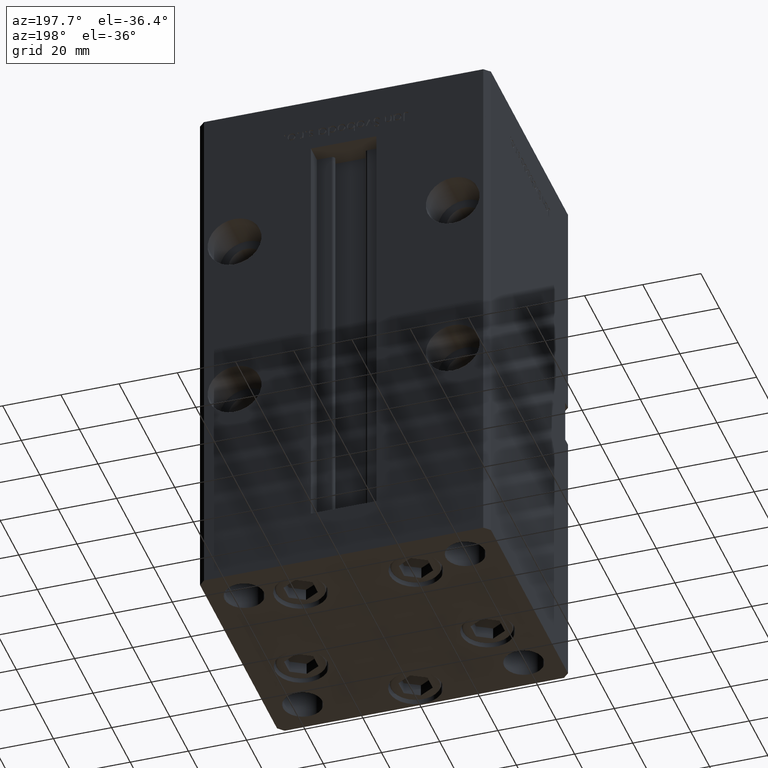
[diagram: clean part render]
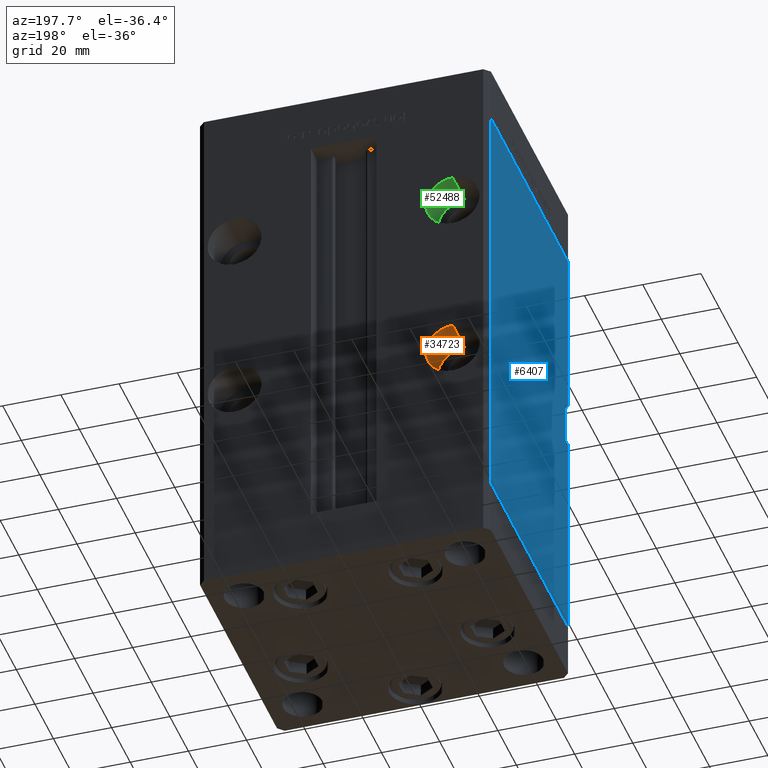
[diagram: same view with three faces highlighted in distinct colors, each labeled with its STEP entity id]
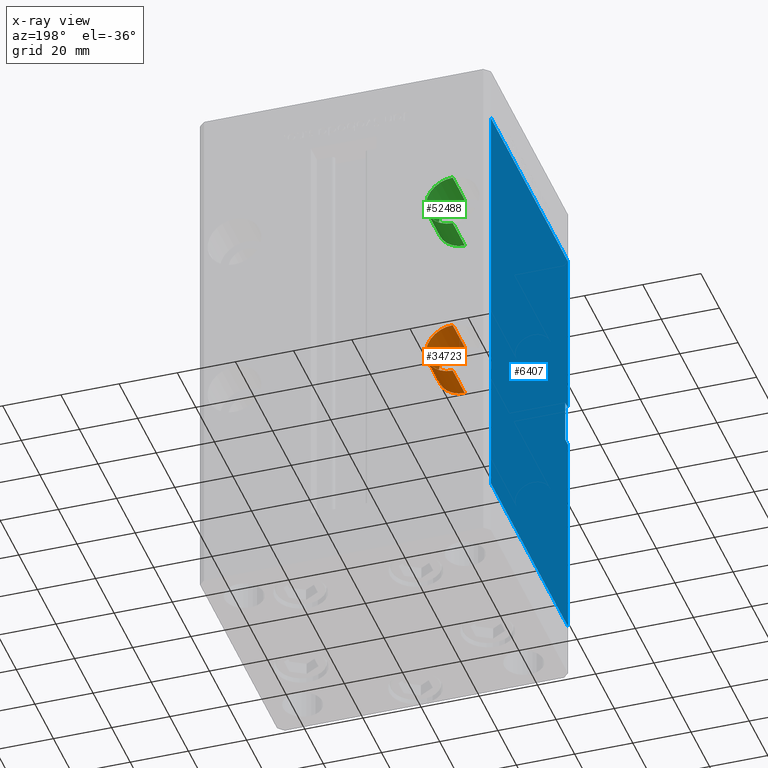
[diagram: x-ray of the same camera — body ghosted, the three highlighted faces saturated]
A machine part, auxiliary view with three faces highlighted in distinct colors.
The next image is the same camera in x-ray (body ghosted, the three faces saturated) — at least one of them is partly hidden behind the body in this view.
Their STEP definitions:

[orange] entity #34723 — the highlighted cylindrical surface (edge-blend (fillet) strip) has radius 9.25 mm, axis along (0, 1, 0).
#1103 = VECTOR ( 'NONE', #12331, 1000.000000000000000 ) ;
#2917 = LINE ( 'NONE', #52885, #1103 ) ;
#3354 = EDGE_LOOP ( 'NONE', ( #33856, #48457, #27878, #27005 ) ) ;
#5857 = VERTEX_POINT ( 'NONE', #41031 ) ;
#6871 = CIRCLE ( 'NONE', #16350, 9.250000000000001776 ) ;
#11393 = VERTEX_POINT ( 'NONE', #42553 ) ;
#12331 = DIRECTION ( 'NONE',  ( -0.000000000000000000, 1.000000000000000000, -0.000000000000000000 ) ) ;
#13288 = EDGE_CURVE ( 'NONE', #49547, #41056, #31770, .T. ) ;
#16350 = AXIS2_PLACEMENT_3D ( 'NONE', #49721, #50780, #46766 ) ;
#16485 = EDGE_CURVE ( 'NONE', #11393, #41056, #6871, .T. ) ;
#17017 = DIRECTION ( 'NONE',  ( 0.000000000000000000, 1.000000000000000000, 0.000000000000000000 ) ) ;
#20396 = CARTESIAN_POINT ( 'NONE',  ( -37.50000000000000000, 30.50000000000000000, 47.24999999999998579 ) ) ;
#20990 = EDGE_CURVE ( 'NONE', #5857, #49547, #45664, .T. ) ;
#22307 = CARTESIAN_POINT ( 'NONE',  ( -37.50000000000000000, 30.50000000000000000, 56.49999999999998579 ) ) ;
#22663 = DIRECTION ( 'NONE',  ( 0.000000000000000000, 0.000000000000000000, 1.000000000000000000 ) ) ;
#22746 = AXIS2_PLACEMENT_3D ( 'NONE', #30729, #51387, #22663 ) ;
#24203 = AXIS2_PLACEMENT_3D ( 'NONE', #22307, #17017, #47030 ) ;
#27005 = ORIENTED_EDGE ( 'NONE', *, *, #16485, .T. ) ;
#27205 = DIRECTION ( 'NONE',  ( -0.000000000000000000, 1.000000000000000000, -0.000000000000000000 ) ) ;
#27878 = ORIENTED_EDGE ( 'NONE', *, *, #52755, .T. ) ;
#30729 = CARTESIAN_POINT ( 'NONE',  ( -37.50000000000000000, 30.50000000000000000, 56.49999999999998579 ) ) ;
#31770 = LINE ( 'NONE', #20396, #53070 ) ;
#33510 = CARTESIAN_POINT ( 'NONE',  ( -37.50000000000000000, 30.50000000000000000, 47.24999999999998579 ) ) ;
#33856 = ORIENTED_EDGE ( 'NONE', *, *, #13288, .F. ) ;
#34723 = ADVANCED_FACE ( 'NONE', ( #47646 ), #35010, .F. ) ;
#35010 = CYLINDRICAL_SURFACE ( 'NONE', #22746, 9.250000000000001776 ) ;
#41031 = CARTESIAN_POINT ( 'NONE',  ( -37.50000000000000000, 30.50000000000000000, 65.74999999999998579 ) ) ;
#41056 = VERTEX_POINT ( 'NONE', #45570 ) ;
#42553 = CARTESIAN_POINT ( 'NONE',  ( -37.50000000000000000, 43.50000000000000000, 65.74999999999998579 ) ) ;
#45570 = CARTESIAN_POINT ( 'NONE',  ( -37.50000000000000000, 43.50000000000000000, 47.24999999999998579 ) ) ;
#45664 = CIRCLE ( 'NONE', #24203, 9.250000000000001776 ) ;
#46766 = DIRECTION ( 'NONE',  ( 0.000000000000000000, 0.000000000000000000, 1.000000000000000000 ) ) ;
#47030 = DIRECTION ( 'NONE',  ( 0.000000000000000000, 0.000000000000000000, 1.000000000000000000 ) ) ;
#47646 = FACE_OUTER_BOUND ( 'NONE', #3354, .T. ) ;
#48457 = ORIENTED_EDGE ( 'NONE', *, *, #20990, .F. ) ;
#49547 = VERTEX_POINT ( 'NONE', #33510 ) ;
#49721 = CARTESIAN_POINT ( 'NONE',  ( -37.50000000000000000, 43.50000000000000000, 56.49999999999998579 ) ) ;
#50780 = DIRECTION ( 'NONE',  ( 0.000000000000000000, 1.000000000000000000, 0.000000000000000000 ) ) ;
#51387 = DIRECTION ( 'NONE',  ( -0.000000000000000000, 1.000000000000000000, -0.000000000000000000 ) ) ;
#52755 = EDGE_CURVE ( 'NONE', #5857, #11393, #2917, .T. ) ;
#52885 = CARTESIAN_POINT ( 'NONE',  ( -37.50000000000000000, 30.50000000000000000, 65.74999999999998579 ) ) ;
#53070 = VECTOR ( 'NONE', #27205, 1000.000000000000000 ) ;

[blue] entity #6407 — the highlighted planar face has unit normal (1, 0, 0).
#829 = VERTEX_POINT ( 'NONE', #18081 ) ;
#1260 = CARTESIAN_POINT ( 'NONE',  ( -49.99999999999998579, -41.49999999999999289, 148.5000000000000000 ) ) ;
#1492 = EDGE_CURVE ( 'NONE', #829, #28219, #53013, .T. ) ;
#3239 = CARTESIAN_POINT ( 'NONE',  ( -50.00000000000001421, 41.49999999999999289, 148.5000000000000000 ) ) ;
#4258 = CARTESIAN_POINT ( 'NONE',  ( -49.99999999999998579, -38.50000000000000000, 74.00000000000000000 ) ) ;
#4723 = EDGE_CURVE ( 'NONE', #34362, #34452, #39761, .T. ) ;
#6407 = ADVANCED_FACE ( 'NONE', ( #25061 ), #10175, .F. ) ;
#7256 = CARTESIAN_POINT ( 'NONE',  ( -49.99999999999998579, -41.49999999999999289, 148.5000000000000000 ) ) ;
#8006 = CARTESIAN_POINT ( 'NONE',  ( -49.99999999999998579, -41.49999999999999289, 89.00000000000000000 ) ) ;
#8376 = DIRECTION ( 'NONE',  ( -3.344045254895050480E-16, 1.000000000000000000, 0.000000000000000000 ) ) ;
#9110 = ORIENTED_EDGE ( 'NONE', *, *, #32090, .F. ) ;
#10175 = PLANE ( 'NONE',  #49606 ) ;
#11274 = CARTESIAN_POINT ( 'NONE',  ( -50.00000000000001421, 41.49999999999999289, 148.5000000000000000 ) ) ;
#11386 = VECTOR ( 'NONE', #40806, 1000.000000000000000 ) ;
#11914 = ORIENTED_EDGE ( 'NONE', *, *, #46237, .F. ) ;
#12044 = LINE ( 'NONE', #16636, #11386 ) ;
#13083 = CARTESIAN_POINT ( 'NONE',  ( -50.00000000000001421, 41.49999999999999289, 148.5000000000000000 ) ) ;
#14956 = VECTOR ( 'NONE', #23756, 1000.000000000000000 ) ;
#14977 = VERTEX_POINT ( 'NONE', #41185 ) ;
#16156 = ORIENTED_EDGE ( 'NONE', *, *, #1492, .T. ) ;
#16636 = CARTESIAN_POINT ( 'NONE',  ( -49.99999999999998579, -38.50000000000000000, 89.00000000000000000 ) ) ;
#17128 = LINE ( 'NONE', #1260, #19062 ) ;
#17170 = EDGE_LOOP ( 'NONE', ( #11914, #9110, #45417, #16156, #51020, #17493, #52845, #51776 ) ) ;
#17493 = ORIENTED_EDGE ( 'NONE', *, *, #4723, .F. ) ;
#18081 = CARTESIAN_POINT ( 'NONE',  ( -49.99999999999998579, -38.50000000000000000, 89.00000000000000000 ) ) ;
#19062 = VECTOR ( 'NONE', #20892, 1000.000000000000000 ) ;
#20892 = DIRECTION ( 'NONE',  ( -0.000000000000000000, -0.000000000000000000, -1.000000000000000000 ) ) ;
#21058 = DIRECTION ( 'NONE',  ( -0.000000000000000000, -1.000000000000000000, -0.000000000000000000 ) ) ;
#22918 = EDGE_CURVE ( 'NONE', #34452, #28219, #23667, .T. ) ;
#23667 = LINE ( 'NONE', #7256, #24237 ) ;
#23756 = DIRECTION ( 'NONE',  ( -0.000000000000000000, -1.000000000000000000, -0.000000000000000000 ) ) ;
#24218 = VECTOR ( 'NONE', #39399, 1000.000000000000000 ) ;
#24237 = VECTOR ( 'NONE', #27437, 1000.000000000000000 ) ;
#25061 = FACE_OUTER_BOUND ( 'NONE', #17170, .T. ) ;
#27437 = DIRECTION ( 'NONE',  ( -0.000000000000000000, -0.000000000000000000, -1.000000000000000000 ) ) ;
#28219 = VERTEX_POINT ( 'NONE', #8006 ) ;
#28320 = EDGE_CURVE ( 'NONE', #829, #48548, #12044, .T. ) ;
#28541 = CARTESIAN_POINT ( 'NONE',  ( -49.99999999999998579, -41.49999999999999289, 74.00000000000000000 ) ) ;
#29238 = EDGE_CURVE ( 'NONE', #34362, #14977, #32027, .T. ) ;
#29994 = CARTESIAN_POINT ( 'NONE',  ( -49.99999999999998579, -41.49999999999999289, 0.000000000000000000 ) ) ;
#32027 = LINE ( 'NONE', #3239, #41491 ) ;
#32090 = EDGE_CURVE ( 'NONE', #48548, #49207, #53021, .T. ) ;
#32104 = CARTESIAN_POINT ( 'NONE',  ( -49.99999999999998579, -38.50000000000000000, 74.00000000000000000 ) ) ;
#33127 = CARTESIAN_POINT ( 'NONE',  ( -50.00000000000001421, 41.49999999999999289, 148.5000000000000000 ) ) ;
#33463 = VERTEX_POINT ( 'NONE', #29994 ) ;
#33556 = VECTOR ( 'NONE', #39231, 1000.000000000000000 ) ;
#34362 = VERTEX_POINT ( 'NONE', #13083 ) ;
#34452 = VERTEX_POINT ( 'NONE', #35855 ) ;
#35855 = CARTESIAN_POINT ( 'NONE',  ( -49.99999999999998579, -41.49999999999999289, 148.5000000000000000 ) ) ;
#36093 = CARTESIAN_POINT ( 'NONE',  ( -49.99999999999998579, -38.50000000000000000, 89.00000000000000000 ) ) ;
#39231 = DIRECTION ( 'NONE',  ( 3.344045254895050973E-16, -1.000000000000000000, 0.000000000000000000 ) ) ;
#39399 = DIRECTION ( 'NONE',  ( 3.344045254895050973E-16, -1.000000000000000000, 0.000000000000000000 ) ) ;
#39761 = LINE ( 'NONE', #11274, #33556 ) ;
#40806 = DIRECTION ( 'NONE',  ( 0.000000000000000000, 0.000000000000000000, -1.000000000000000000 ) ) ;
#41185 = CARTESIAN_POINT ( 'NONE',  ( -50.00000000000001421, 41.49999999999999289, 0.000000000000000000 ) ) ;
#41457 = DIRECTION ( 'NONE',  ( 1.000000000000000000, 3.344045254895050480E-16, -0.000000000000000000 ) ) ;
#41491 = VECTOR ( 'NONE', #48414, 1000.000000000000000 ) ;
#45417 = ORIENTED_EDGE ( 'NONE', *, *, #28320, .F. ) ;
#46237 = EDGE_CURVE ( 'NONE', #49207, #33463, #17128, .T. ) ;
#47214 = VECTOR ( 'NONE', #21058, 1000.000000000000000 ) ;
#47997 = LINE ( 'NONE', #52274, #24218 ) ;
#48414 = DIRECTION ( 'NONE',  ( -0.000000000000000000, -0.000000000000000000, -1.000000000000000000 ) ) ;
#48548 = VERTEX_POINT ( 'NONE', #4258 ) ;
#49207 = VERTEX_POINT ( 'NONE', #28541 ) ;
#49606 = AXIS2_PLACEMENT_3D ( 'NONE', #33127, #41457, #8376 ) ;
#51020 = ORIENTED_EDGE ( 'NONE', *, *, #22918, .F. ) ;
#51776 = ORIENTED_EDGE ( 'NONE', *, *, #51864, .T. ) ;
#51864 = EDGE_CURVE ( 'NONE', #14977, #33463, #47997, .T. ) ;
#52274 = CARTESIAN_POINT ( 'NONE',  ( -50.00000000000001421, 41.49999999999999289, 0.000000000000000000 ) ) ;
#52845 = ORIENTED_EDGE ( 'NONE', *, *, #29238, .T. ) ;
#53013 = LINE ( 'NONE', #36093, #47214 ) ;
#53021 = LINE ( 'NONE', #32104, #14956 ) ;

[green] entity #52488 — the highlighted cylindrical surface (edge-blend (fillet) strip) has radius 9.25 mm, axis along (0, 1, 0).
#370 = DIRECTION ( 'NONE',  ( 0.000000000000000000, 1.000000000000000000, -0.000000000000000000 ) ) ;
#1750 = DIRECTION ( 'NONE',  ( -0.000000000000000000, 1.000000000000000000, -0.000000000000000000 ) ) ;
#3318 = VERTEX_POINT ( 'NONE', #7103 ) ;
#5248 = EDGE_CURVE ( 'NONE', #21746, #17770, #14136, .T. ) ;
#6455 = CIRCLE ( 'NONE', #17654, 9.250000000000008882 ) ;
#7103 = CARTESIAN_POINT ( 'NONE',  ( -37.50000000000000000, 30.50000000000000000, 125.7500000000000000 ) ) ;
#9087 = CARTESIAN_POINT ( 'NONE',  ( -37.50000000000000000, 43.50000000000000000, 107.2499999999999858 ) ) ;
#9152 = DIRECTION ( 'NONE',  ( 0.000000000000000000, 0.000000000000000000, 1.000000000000000000 ) ) ;
#9381 = EDGE_LOOP ( 'NONE', ( #21577, #17982, #44945, #50362 ) ) ;
#9652 = CARTESIAN_POINT ( 'NONE',  ( -37.50000000000000000, 30.50000000000000000, 116.4999999999999858 ) ) ;
#10493 = AXIS2_PLACEMENT_3D ( 'NONE', #37646, #16959, #9152 ) ;
#12653 = CYLINDRICAL_SURFACE ( 'NONE', #10493, 9.250000000000008882 ) ;
#14136 = LINE ( 'NONE', #22190, #50414 ) ;
#16546 = VECTOR ( 'NONE', #24394, 1000.000000000000000 ) ;
#16779 = DIRECTION ( 'NONE',  ( 0.000000000000000000, 0.000000000000000000, -1.000000000000000000 ) ) ;
#16959 = DIRECTION ( 'NONE',  ( -0.000000000000000000, 1.000000000000000000, -0.000000000000000000 ) ) ;
#17654 = AXIS2_PLACEMENT_3D ( 'NONE', #9652, #37882, #33851 ) ;
#17770 = VERTEX_POINT ( 'NONE', #9087 ) ;
#17982 = ORIENTED_EDGE ( 'NONE', *, *, #35462, .F. ) ;
#18643 = VERTEX_POINT ( 'NONE', #20212 ) ;
#20212 = CARTESIAN_POINT ( 'NONE',  ( -37.50000000000000000, 43.50000000000000000, 125.7500000000000000 ) ) ;
#21577 = ORIENTED_EDGE ( 'NONE', *, *, #5248, .F. ) ;
#21746 = VERTEX_POINT ( 'NONE', #45750 ) ;
#22190 = CARTESIAN_POINT ( 'NONE',  ( -37.50000000000000000, 30.50000000000000000, 107.2499999999999858 ) ) ;
#22345 = EDGE_CURVE ( 'NONE', #3318, #18643, #37291, .T. ) ;
#24394 = DIRECTION ( 'NONE',  ( -0.000000000000000000, 1.000000000000000000, -0.000000000000000000 ) ) ;
#33851 = DIRECTION ( 'NONE',  ( 0.000000000000000000, 0.000000000000000000, -1.000000000000000000 ) ) ;
#35462 = EDGE_CURVE ( 'NONE', #3318, #21746, #6455, .T. ) ;
#37199 = CARTESIAN_POINT ( 'NONE',  ( -37.50000000000000000, 43.50000000000000000, 116.4999999999999858 ) ) ;
#37291 = LINE ( 'NONE', #49638, #16546 ) ;
#37493 = EDGE_CURVE ( 'NONE', #18643, #17770, #40082, .T. ) ;
#37646 = CARTESIAN_POINT ( 'NONE',  ( -37.50000000000000000, 30.50000000000000000, 116.4999999999999858 ) ) ;
#37882 = DIRECTION ( 'NONE',  ( 0.000000000000000000, 1.000000000000000000, -0.000000000000000000 ) ) ;
#40082 = CIRCLE ( 'NONE', #46976, 9.250000000000008882 ) ;
#41686 = FACE_OUTER_BOUND ( 'NONE', #9381, .T. ) ;
#44945 = ORIENTED_EDGE ( 'NONE', *, *, #22345, .T. ) ;
#45750 = CARTESIAN_POINT ( 'NONE',  ( -37.50000000000000000, 30.50000000000000000, 107.2499999999999858 ) ) ;
#46976 = AXIS2_PLACEMENT_3D ( 'NONE', #37199, #370, #16779 ) ;
#49638 = CARTESIAN_POINT ( 'NONE',  ( -37.50000000000000000, 30.50000000000000000, 125.7500000000000000 ) ) ;
#50362 = ORIENTED_EDGE ( 'NONE', *, *, #37493, .T. ) ;
#50414 = VECTOR ( 'NONE', #1750, 1000.000000000000000 ) ;
#52488 = ADVANCED_FACE ( 'NONE', ( #41686 ), #12653, .F. ) ;